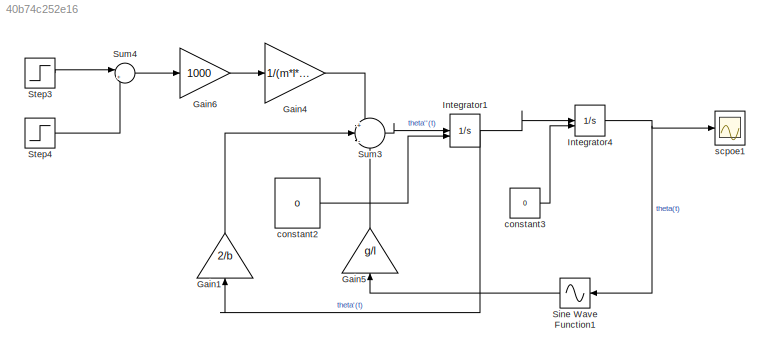
MODEL slx_40b74c252e16
KIND model
CONFIG AbsTol = auto
CONFIG EnableMultiTasking = off
CONFIG FixedStep = auto
CONFIG MaxStep = auto
CONFIG MinStep = auto
CONFIG RelTol = 1e-3
CONFIG SampleTimeConstraint = Unconstrained
CONFIG SolverName = VariableStepAuto
CONFIG StartTime = 0.0
CONFIG StopTime = 10
WORKSPACE source: mxarray member
WORKSPACE b = 10
WORKSPACE g = 9.8
WORKSPACE l = 0.8
WORKSPACE m = 2
BLOCK [Gain] Gain1
  Gain = 2/b
  NameLocation = right
BLOCK [Gain] Gain4
  Gain = 1/(m*l*l)
BLOCK [Gain] Gain5
  Gain = g/l
  NameLocation = right
BLOCK [Gain] Gain6
  Gain = 1000
BLOCK [Integrator] Integrator1
  InitialCondition = 1/(m*l*l)
  InitialConditionSource = external
BLOCK [Integrator] Integrator4
  InitialConditionSource = external
BLOCK [Sin] Sine Wave Function1
  Frequency = 1/(2*pi)
  NameLocation = top
  SampleTime = 0
  TimeSource = Use external signal
BLOCK [Step] Step3
  SampleTime = 0
  Time = 0
BLOCK [Step] Step4
  SampleTime = 0
  Time = 0.001
BLOCK [Sum] Sum3
  Inputs = +|-|-
BLOCK [Sum] Sum4
  Inputs = |+-
BLOCK [Constant] constant2
  Value = 0
BLOCK [Constant] constant3
  Value = 0
BLOCK [Scope] scpoe1
  Floating = off
  NumInputPorts = 1
  ScopeSpecificationString = Simulink.scopes.TimeScopeBlockCfg('CurrentConfiguration', extmgr.ConfigurationSet(extmgr.Configuration('Core','General UI',true,'FigureColor',[1 1 1]),extmgr.Configuration('Core','Source UI',true),extmgr.Configuration('Sources','WiredSimulink',true,'DataLoggingVariableName','ScopeData2'),extmgr.Configuration('Visuals','Time Domain',true,'SerializedDisplays',{struct('MinYLimReal','-0.51131','MaxYLi...<+1641ch>
LINE Gain1:1 -> Sum3:2
LINE Gain4:1 -> Sum3:1
LINE Gain5:1 -> Sum3:3
LINE Gain6:1 -> Gain4:1
NET Integrator1:1 -> Gain1:1, Integrator4:1
NET Integrator4:1 -> Sine Wave Function1:1, scpoe1:1
LINE Sine Wave Function1:1 -> Gain5:1
LINE Step3:1 -> Sum4:1
LINE Step4:1 -> Sum4:2
LINE Sum3:1 -> Integrator1:1
LINE Sum4:1 -> Gain6:1
LINE constant2:1 -> Integrator1:2
LINE constant3:1 -> Integrator4:2
note: NET lines group one-source signal fan-out (src -> all destinations, sorted); 1:1 wires keep LINE
